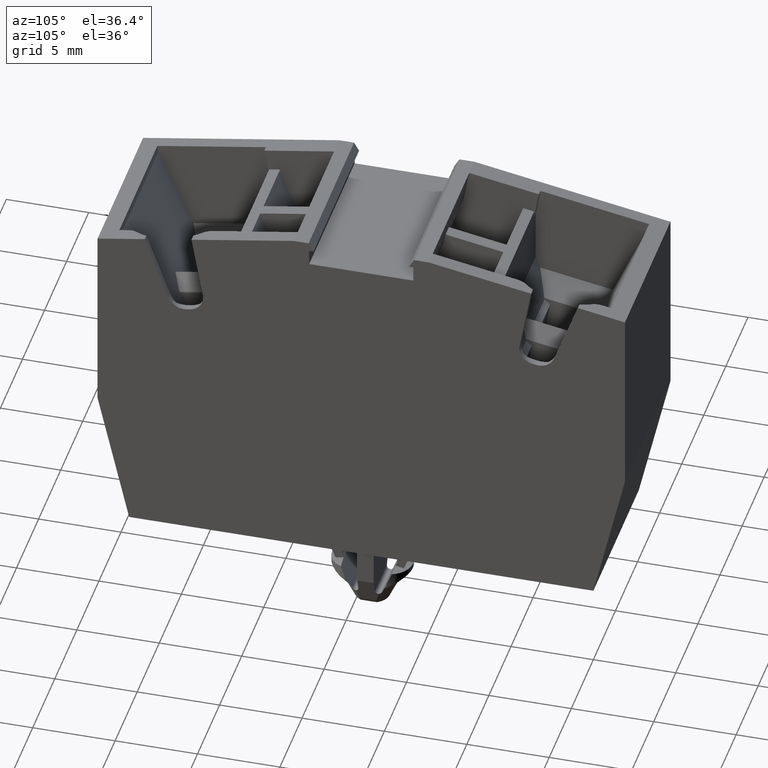
[diagram: clean part render]
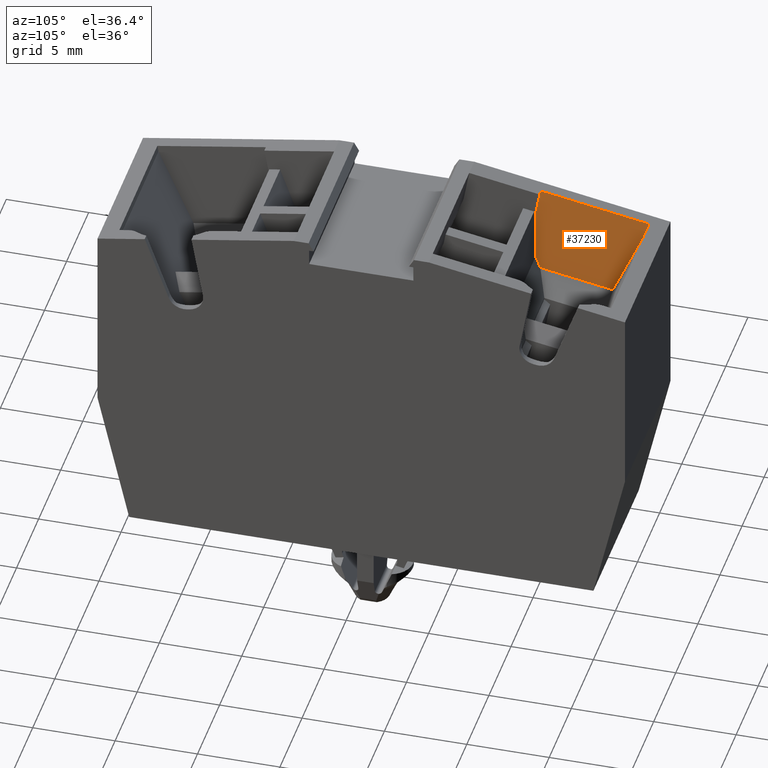
[diagram: same view with one face highlighted and labeled with its STEP entity id]
A machine part, auxiliary view. The second image highlights one B-rep face of the part: STEP entity #37230.
In plain terms, the highlighted planar face has unit normal (-1, 0, -0).
Its self-contained STEP definition (entity closure, byte-faithful):
#28710=CARTESIAN_POINT('',(-3.36983187699884,96.7728643218228,
64.5499999999996));
#28720=VERTEX_POINT('',#28710);
#28750=CARTESIAN_POINT('',(6.44969629117272,75.7148182090402,
64.5499999999994));
#28760=DIRECTION('',(-0.422618261740699,0.90630778703665,
9.76996261670138E-15));
#28770=VECTOR('',#28760,1.);
#28780=LINE('',#28750,#28770);
#28790=CARTESIAN_POINT('',(-6.19463392360204,102.830671859833,
64.5499999999996));
#28800=VERTEX_POINT('',#28790);
#28810=EDGE_CURVE('',#28720,#28800,#28780,.T.);
#36500=CARTESIAN_POINT('',(73.314864067354,139.906559669144,
64.5499999999997));
#36510=DIRECTION('',(-0.906307787036351,-0.422618261741341,
2.03402880955748E-64));
#36520=VECTOR('',#36510,1.);
#36530=LINE('',#36500,#36520);
#36540=CARTESIAN_POINT('',(-4.64715590385912,103.552272711267,
64.5499999999997));
#36550=VERTEX_POINT('',#36540);
#36560=EDGE_CURVE('',#36550,#28800,#36530,.T.);
#36760=CARTESIAN_POINT('',(-3.36983187698766,96.772864321828,
64.5499999999996));
#36770=DIRECTION('',(4.14455412124684E-15,-8.88802499542134E-15,1.));
#36780=DIRECTION('',(0.422618261741438,-0.906307787036306,
-9.80685052313833E-15));
#36790=AXIS2_PLACEMENT_3D('',#36760,#36770,#36780);
#36800=PLANE('',#36790);
#36810=CARTESIAN_POINT('',(2.48939506380872,97.2218203057791,
64.5499999999996));
#36820=DIRECTION('',(-0.422618261741438,0.906307787036306,
9.81010493702879E-15));
#36830=VECTOR('',#36820,1.);
#36840=LINE('',#36810,#36830);
#36850=CARTESIAN_POINT('',(1.08345546215995,100.236867511327,
64.5499999999996));
#36860=VERTEX_POINT('',#36850);
#36870=CARTESIAN_POINT('',(-0.808688447278396,104.294583219708,
64.5499999999997));
#36880=VERTEX_POINT('',#36870);
#36890=EDGE_CURVE('',#36860,#36880,#36840,.T.);
#36900=ORIENTED_EDGE('',*,*,#36890,.F.);
#36910=CARTESIAN_POINT('',(84.8654825864042,96.7990644973405,
64.5499999999993));
#36920=DIRECTION('',(-0.996194698091807,0.087155742746954,
4.91273688396632E-15));
#36930=VECTOR('',#36920,1.);
#36940=LINE('',#36910,#36930);
#36950=CARTESIAN_POINT('',(-1.61390303522738,104.365030367858,
64.5499999999997));
#36960=VERTEX_POINT('',#36950);
#36970=EDGE_CURVE('',#36880,#36960,#36940,.T.);
#36980=ORIENTED_EDGE('',*,*,#36970,.F.);
#36990=CARTESIAN_POINT('',(77.1809707339229,125.478053162074,
64.5499999999995));
#37000=DIRECTION('',(-0.965925826288885,-0.258819045103204,
1.70294172199598E-15));
#37010=VECTOR('',#37000,1.);
#37020=LINE('',#36990,#37010);
#37030=EDGE_CURVE('',#36960,#36550,#37020,.T.);
#37040=ORIENTED_EDGE('',*,*,#37030,.F.);
#37050=ORIENTED_EDGE('',*,*,#36560,.F.);
#37060=ORIENTED_EDGE('',*,*,#28810,.T.);
#37070=CARTESIAN_POINT('',(75.0715112010697,133.350663315168,
64.5499999999996));
#37080=DIRECTION('',(0.906307787036306,0.422618261741438,
1.38777878078145E-17));
#37090=VECTOR('',#37080,1.);
#37100=LINE('',#37070,#37090);
#37110=CARTESIAN_POINT('',(-3.02477034851117,96.9337691550915,
64.5499999999996));
#37120=VERTEX_POINT('',#37110);
#37130=EDGE_CURVE('',#28720,#37120,#37100,.T.);
#37140=ORIENTED_EDGE('',*,*,#37130,.F.);
#37150=CARTESIAN_POINT('',(69.2572006008547,155.049965886087,
64.5499999999998));
#37160=DIRECTION('',(-0.779337964930914,-0.626603811365158,
-2.33146835171283E-15));
#37170=VECTOR('',#37160,1.);
#37180=LINE('',#37150,#37170);
#37190=EDGE_CURVE('',#36860,#37120,#37180,.T.);
#37200=ORIENTED_EDGE('',*,*,#37190,.T.);
#37210=EDGE_LOOP('',(#37200,#37140,#37060,#37050,#37040,#36980,#36900));
#37220=FACE_OUTER_BOUND('',#37210,.T.);
#37230=ADVANCED_FACE('',(#37220),#36800,.F.);